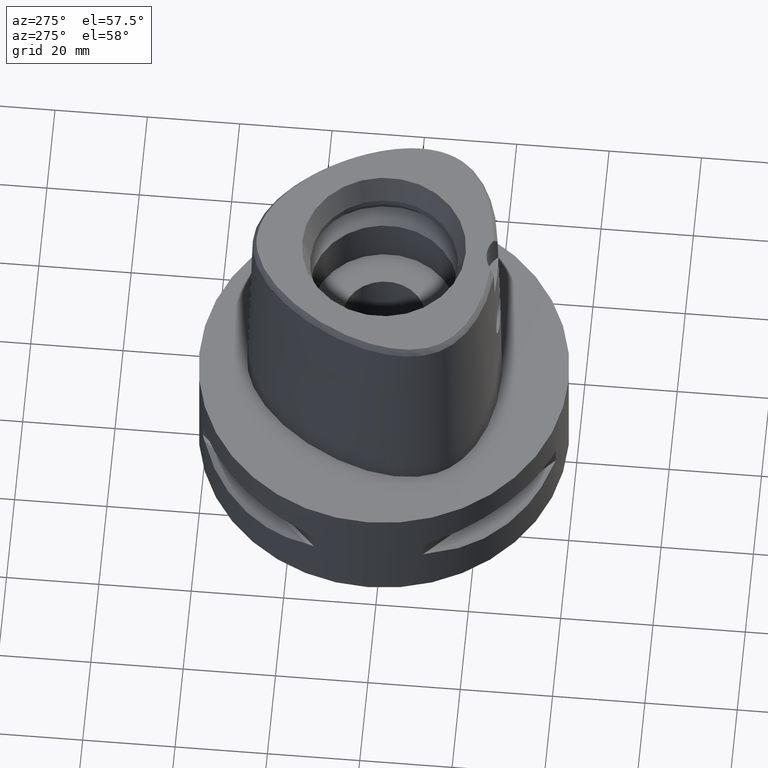
[diagram: clean part render]
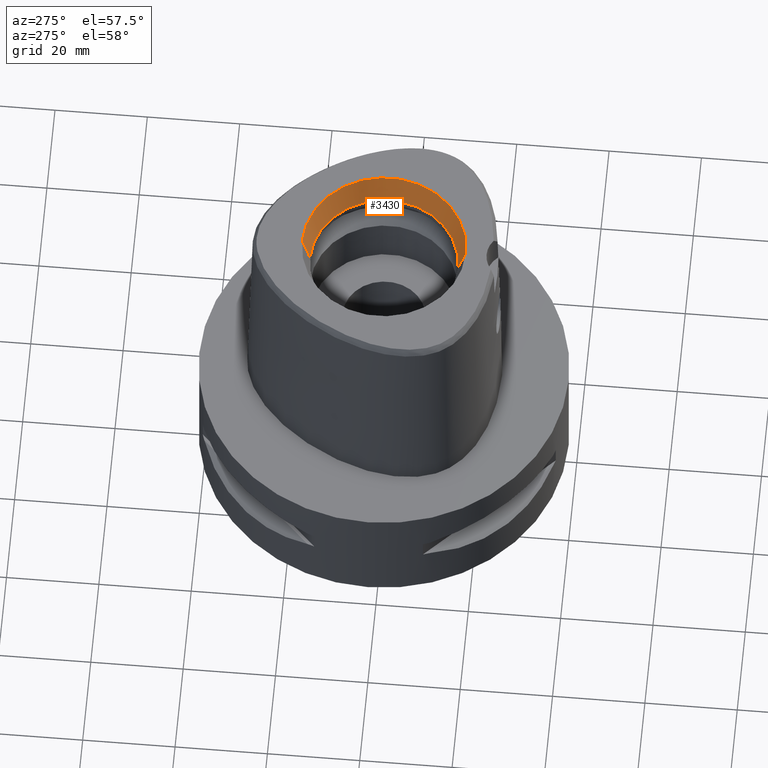
[diagram: same view with one face highlighted and labeled with its STEP entity id]
A machine part, auxiliary view. The second image highlights one B-rep face of the part: STEP entity #3430.
In plain terms, the highlighted conical surface has half-angle 15 deg.
Its self-contained STEP definition (entity closure, byte-faithful):
#130=CARTESIAN_POINT('',(0.E0,0.E0,4.8E1));
#131=DIRECTION('',(0.E0,0.E0,1.E0));
#132=DIRECTION('',(0.E0,-1.E0,0.E0));
#133=AXIS2_PLACEMENT_3D('',#130,#131,#132);
#1222=DIRECTION('',(0.E0,-2.588190451026E-1,9.659258262891E-1));
#1223=VECTOR('',#1222,6.625767554625E0);
#1224=CARTESIAN_POINT('',(0.E0,-1.6E1,4.16E1));
#1225=LINE('',#1224,#1223);
#1229=CARTESIAN_POINT('',(0.E0,0.E0,4.16E1));
#1230=DIRECTION('',(0.E0,0.E0,1.E0));
#1231=DIRECTION('',(0.E0,-1.E0,0.E0));
#1232=AXIS2_PLACEMENT_3D('',#1229,#1230,#1231);
#1237=DIRECTION('',(0.E0,2.588190451026E-1,9.659258262891E-1));
#1238=VECTOR('',#1237,6.625767554625E0);
#1239=CARTESIAN_POINT('',(0.E0,1.6E1,4.16E1));
#1240=LINE('',#1239,#1238);
#1689=CARTESIAN_POINT('',(0.E0,1.771487483156E1,4.8E1));
#1690=CARTESIAN_POINT('',(0.E0,-1.771487483156E1,4.8E1));
#1691=VERTEX_POINT('',#1689);
#1692=VERTEX_POINT('',#1690);
#1863=CARTESIAN_POINT('',(0.E0,-1.6E1,4.16E1));
#1864=VERTEX_POINT('',#1863);
#1865=CARTESIAN_POINT('',(0.E0,1.6E1,4.16E1));
#1866=VERTEX_POINT('',#1865);
#3419=CARTESIAN_POINT('',(0.E0,0.E0,4.48E1));
#3420=DIRECTION('',(0.E0,0.E0,1.E0));
#3421=DIRECTION('',(0.E0,1.E0,0.E0));
#3422=AXIS2_PLACEMENT_3D('',#3419,#3420,#3421);
#3423=CONICAL_SURFACE('',#3422,1.685743741578E1,1.5E1);
#3424=ORIENTED_EDGE('',*,*,#1898,.F.);
#3425=ORIENTED_EDGE('',*,*,#3414,.F.);
#3426=ORIENTED_EDGE('',*,*,#3387,.T.);
#3427=ORIENTED_EDGE('',*,*,#3411,.T.);
#3428=EDGE_LOOP('',(#3424,#3425,#3426,#3427));
#3429=FACE_OUTER_BOUND('',#3428,.F.);
#134=CIRCLE('',#133,1.771487483156E1);
#1233=CIRCLE('',#1232,1.6E1);
#1898=EDGE_CURVE('',#1692,#1691,#134,.T.);
#3387=EDGE_CURVE('',#1864,#1866,#1233,.T.);
#3411=EDGE_CURVE('',#1866,#1691,#1240,.T.);
#3414=EDGE_CURVE('',#1864,#1692,#1225,.T.);
#3430=ADVANCED_FACE('',(#3429),#3423,.F.);